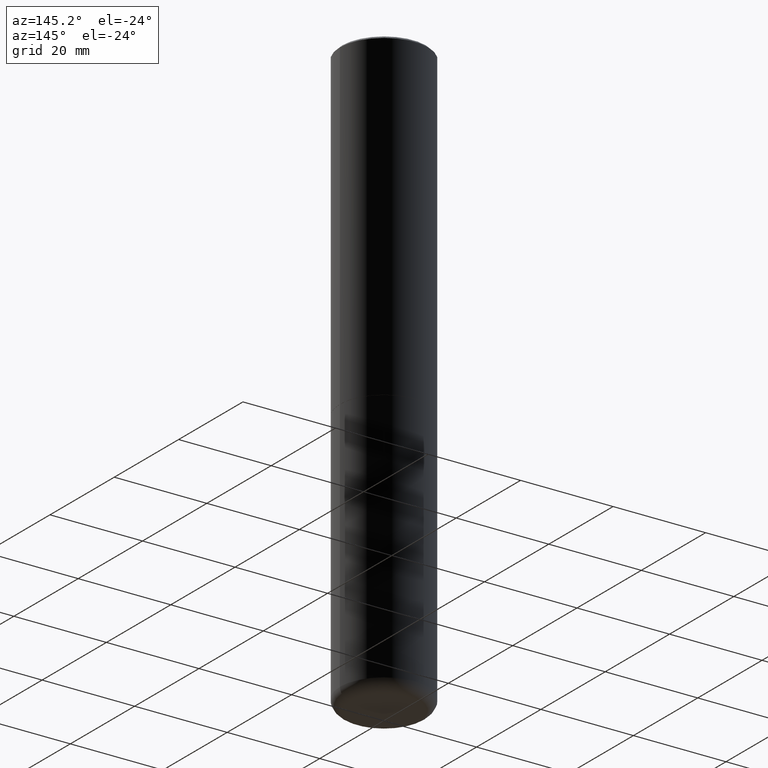
[diagram: clean part render]
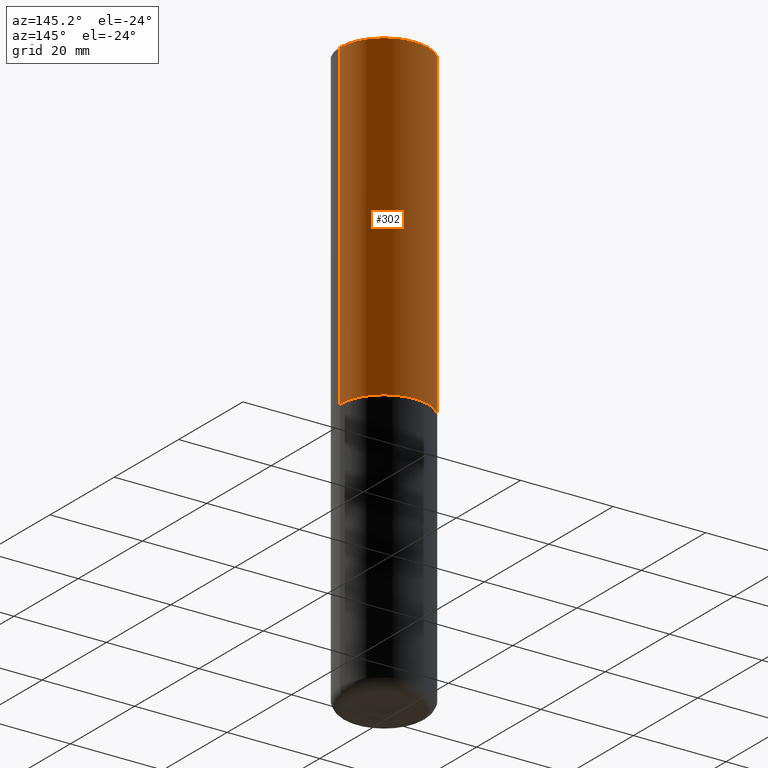
[diagram: same view with one face highlighted and labeled with its STEP entity id]
A machine part, auxiliary view. The second image highlights one B-rep face of the part: STEP entity #302.
In plain terms, the highlighted cylindrical surface (partial cylindrical patch) has radius 9.525 mm, axis along (-0, 0, 1).
Its self-contained STEP definition (entity closure, byte-faithful):
#15 = DIRECTION ( 'NONE',  ( -2.445468806185136597E-29, 3.491481338843145583E-15, 1.000000000000000000 ) ) ;
#16 = VERTEX_POINT ( 'NONE', #456 ) ;
#42 = LINE ( 'NONE', #195, #113 ) ;
#56 = EDGE_CURVE ( 'NONE', #291, #118, #280, .T. ) ;
#66 = EDGE_LOOP ( 'NONE', ( #77, #193, #309, #447 ) ) ;
#77 = ORIENTED_EDGE ( 'NONE', *, *, #56, .T. ) ;
#79 = DIRECTION ( 'NONE',  ( 1.000000000000000000, -6.982962677686265133E-15, 4.876176775795935793E-29 ) ) ;
#97 = DIRECTION ( 'NONE',  ( -2.445468806185136877E-29, 3.491481338843145188E-15, 1.000000000000000000 ) ) ;
#98 = AXIS2_PLACEMENT_3D ( 'NONE', #231, #142, #137 ) ;
#108 = EDGE_CURVE ( 'NONE', #16, #375, #124, .T. ) ;
#113 = VECTOR ( 'NONE', #352, 39.37007874015748143 ) ;
#118 = VERTEX_POINT ( 'NONE', #148 ) ;
#124 = CIRCLE ( 'NONE', #251, 0.3749999999999991673 ) ;
#129 = CARTESIAN_POINT ( 'NONE',  ( -0.3749999999999991673, 2.548781377355480407E-15, -0.02000000000000022246 ) ) ;
#137 = DIRECTION ( 'NONE',  ( 1.000000000000000000, -6.982962677686266711E-15, 0.000000000000000000 ) ) ;
#142 = DIRECTION ( 'NONE',  ( -2.445468806185136597E-29, 3.491481338843145583E-15, 1.000000000000000000 ) ) ;
#148 = CARTESIAN_POINT ( 'NONE',  ( -0.3750000000000000555, -2.169420654527954251E-15, -2.749000000000000554 ) ) ;
#156 = CARTESIAN_POINT ( 'NONE',  ( 0.3750000000000000555, -1.221669320461216002E-14, -2.749000000000000554 ) ) ;
#166 = EDGE_CURVE ( 'NONE', #118, #375, #42, .T. ) ;
#193 = ORIENTED_EDGE ( 'NONE', *, *, #166, .T. ) ;
#194 = VECTOR ( 'NONE', #97, 39.37007874015748143 ) ;
#195 = CARTESIAN_POINT ( 'NONE',  ( -0.3749999999999995559, 2.664535259100372542E-15, -1.844600658845587356E-29 ) ) ;
#202 = FACE_OUTER_BOUND ( 'NONE', #66, .T. ) ;
#226 = DIRECTION ( 'NONE',  ( 1.000000000000000000, -6.982962677686266711E-15, 0.000000000000000000 ) ) ;
#231 = CARTESIAN_POINT ( 'NONE',  ( 6.722593748202942280E-29, -9.598082200479810007E-15, -2.749000000000000554 ) ) ;
#251 = AXIS2_PLACEMENT_3D ( 'NONE', #339, #353, #226 ) ;
#260 = AXIS2_PLACEMENT_3D ( 'NONE', #426, #15, #79 ) ;
#280 = CIRCLE ( 'NONE', #98, 0.3750000000000000555 ) ;
#291 = VERTEX_POINT ( 'NONE', #156 ) ;
#294 = CARTESIAN_POINT ( 'NONE',  ( 0.3749999999999995559, -2.618611004132346467E-15, 1.828566290923473680E-29 ) ) ;
#302 = ADVANCED_FACE ( 'NONE', ( #202 ), #390, .T. ) ;
#309 = ORIENTED_EDGE ( 'NONE', *, *, #108, .F. ) ;
#334 = LINE ( 'NONE', #294, #194 ) ;
#339 = CARTESIAN_POINT ( 'NONE',  ( 4.890937612370327459E-31, -6.982962677686369262E-17, -0.02000000000000022246 ) ) ;
#352 = DIRECTION ( 'NONE',  ( -2.445468806185136877E-29, 3.491481338843145188E-15, 1.000000000000000000 ) ) ;
#353 = DIRECTION ( 'NONE',  ( -2.445468806185136597E-29, 3.491481338843145583E-15, 1.000000000000000000 ) ) ;
#375 = VERTEX_POINT ( 'NONE', #129 ) ;
#390 = CYLINDRICAL_SURFACE ( 'NONE', #260, 0.3749999999999995559 ) ;
#426 = CARTESIAN_POINT ( 'NONE',  ( 0.000000000000000000, 0.000000000000000000, 0.000000000000000000 ) ) ;
#447 = ORIENTED_EDGE ( 'NONE', *, *, #473, .F. ) ;
#456 = CARTESIAN_POINT ( 'NONE',  ( 0.3749999999999991673, -2.642516375941182112E-15, -0.02000000000000022246 ) ) ;
#473 = EDGE_CURVE ( 'NONE', #291, #16, #334, .T. ) ;